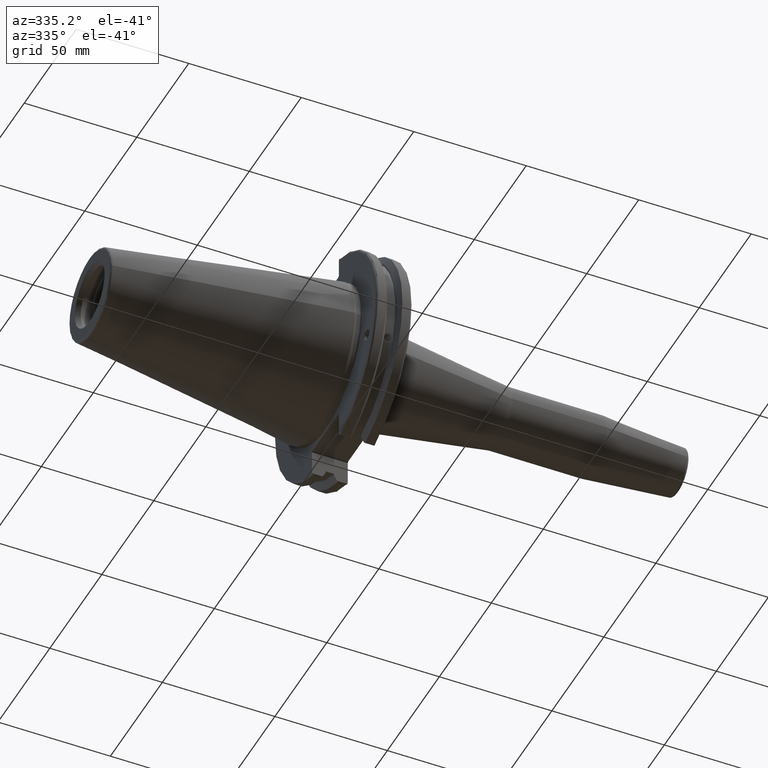
[diagram: clean part render]
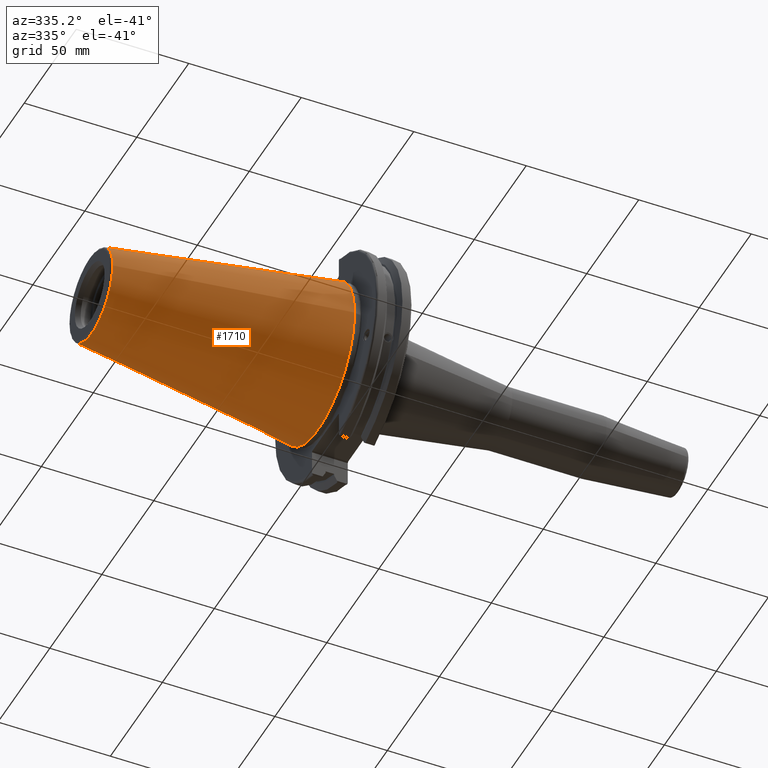
[diagram: same view with one face highlighted and labeled with its STEP entity id]
A machine part, auxiliary view. The second image highlights one B-rep face of the part: STEP entity #1710.
In plain terms, the highlighted conical surface has half-angle 8.297 deg.
Its self-contained STEP definition (entity closure, byte-faithful):
#174=LINE('',#3388,#269);
#269=VECTOR('',#2356,27.5166666666666);
#298=CONICAL_SURFACE('',#1915,27.5166666666666,0.14481249823894);
#421=FACE_OUTER_BOUND('',#528,.T.);
#528=EDGE_LOOP('',(#1496,#1497,#1498,#1499,#1500,#1501,#1502));
#645=CIRCLE('',#1906,20.233121911427);
#646=CIRCLE('',#1907,20.233121911427);
#650=CIRCLE('',#1911,20.233121911427);
#653=CIRCLE('',#1916,34.925);
#654=CIRCLE('',#1917,34.925);
#832=VERTEX_POINT('',#3367);
#833=VERTEX_POINT('',#3368);
#834=VERTEX_POINT('',#3370);
#839=VERTEX_POINT('',#3384);
#840=VERTEX_POINT('',#3385);
#1070=EDGE_CURVE('',#832,#833,#645,.T.);
#1071=EDGE_CURVE('',#833,#834,#646,.T.);
#1075=EDGE_CURVE('',#834,#832,#650,.T.);
#1078=EDGE_CURVE('',#839,#840,#653,.T.);
#1079=EDGE_CURVE('',#840,#839,#654,.T.);
#1080=EDGE_CURVE('',#840,#833,#174,.T.);
#1496=ORIENTED_EDGE('',*,*,#1078,.F.);
#1497=ORIENTED_EDGE('',*,*,#1079,.F.);
#1498=ORIENTED_EDGE('',*,*,#1080,.T.);
#1499=ORIENTED_EDGE('',*,*,#1070,.F.);
#1500=ORIENTED_EDGE('',*,*,#1075,.F.);
#1501=ORIENTED_EDGE('',*,*,#1071,.F.);
#1502=ORIENTED_EDGE('',*,*,#1080,.F.);
#1710=ADVANCED_FACE('',(#421),#298,.T.);
#1906=AXIS2_PLACEMENT_3D('',#3369,#2332,#2333);
#1907=AXIS2_PLACEMENT_3D('',#3371,#2334,#2335);
#1911=AXIS2_PLACEMENT_3D('',#3377,#2342,#2343);
#1915=AXIS2_PLACEMENT_3D('',#3383,#2350,#2351);
#1916=AXIS2_PLACEMENT_3D('',#3386,#2352,#2353);
#1917=AXIS2_PLACEMENT_3D('',#3387,#2354,#2355);
#2332=DIRECTION('center_axis',(-1.,0.,0.));
#2333=DIRECTION('ref_axis',(0.,-1.,3.06161699786838E-17));
#2334=DIRECTION('center_axis',(-1.,0.,0.));
#2335=DIRECTION('ref_axis',(0.,-1.,3.06161699786838E-17));
#2342=DIRECTION('center_axis',(-1.,0.,0.));
#2343=DIRECTION('ref_axis',(0.,-1.,3.06161699786838E-17));
#2350=DIRECTION('center_axis',(1.,0.,0.));
#2351=DIRECTION('ref_axis',(0.,1.,0.));
#2352=DIRECTION('center_axis',(1.,0.,0.));
#2353=DIRECTION('ref_axis',(0.,0.,-1.));
#2354=DIRECTION('center_axis',(1.,0.,0.));
#2355=DIRECTION('ref_axis',(0.,0.,-1.));
#2356=DIRECTION('',(-0.989532981063281,0.144306893071729,1.76724974695192E-17));
#3367=CARTESIAN_POINT('',(-100.744306893072,20.233121911427,-6.19460699639681E-15));
#3368=CARTESIAN_POINT('',(-100.744306893072,-20.233121911427,-2.47784279855872E-15));
#3369=CARTESIAN_POINT('Origin',(-100.744306893072,0.,-3.09730349819841E-15));
#3370=CARTESIAN_POINT('',(-100.744306893072,-2.47784279855872E-15,20.233121911427));
#3371=CARTESIAN_POINT('Origin',(-100.744306893072,0.,-3.09730349819841E-15));
#3377=CARTESIAN_POINT('Origin',(-100.744306893072,0.,-3.09730349819841E-15));
#3383=CARTESIAN_POINT('Origin',(-50.8,0.,0.));
#3384=CARTESIAN_POINT('',(0.,34.925,0.));
#3385=CARTESIAN_POINT('',(-8.88178419700125E-15,-34.925,-4.27707894602213E-15));
#3386=CARTESIAN_POINT('Origin',(0.,0.,0.));
#3387=CARTESIAN_POINT('Origin',(0.,0.,0.));
#3388=CARTESIAN_POINT('',(-50.8,-27.5166666666666,-3.3698197756538E-15));